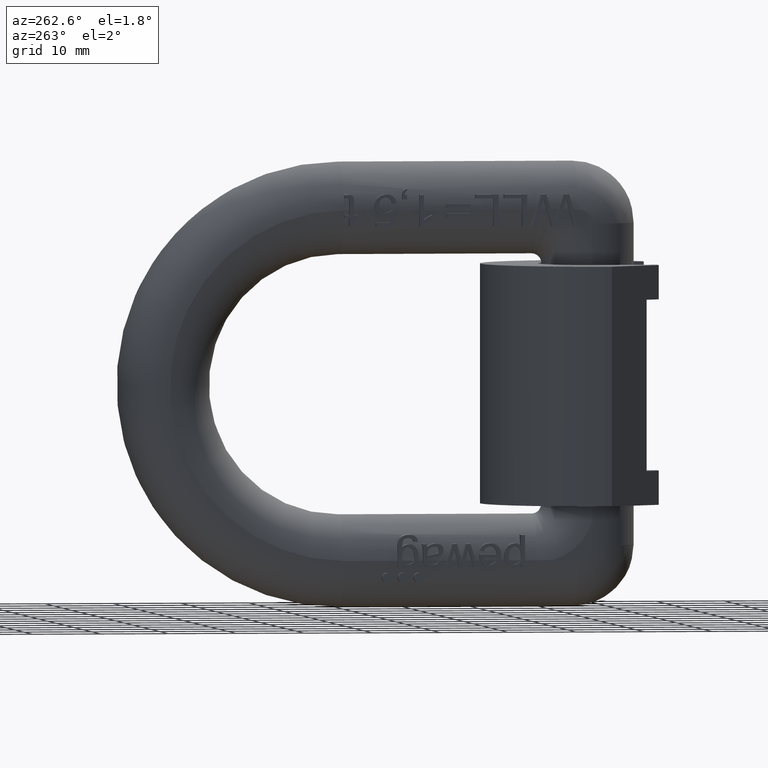
[diagram: clean part render]
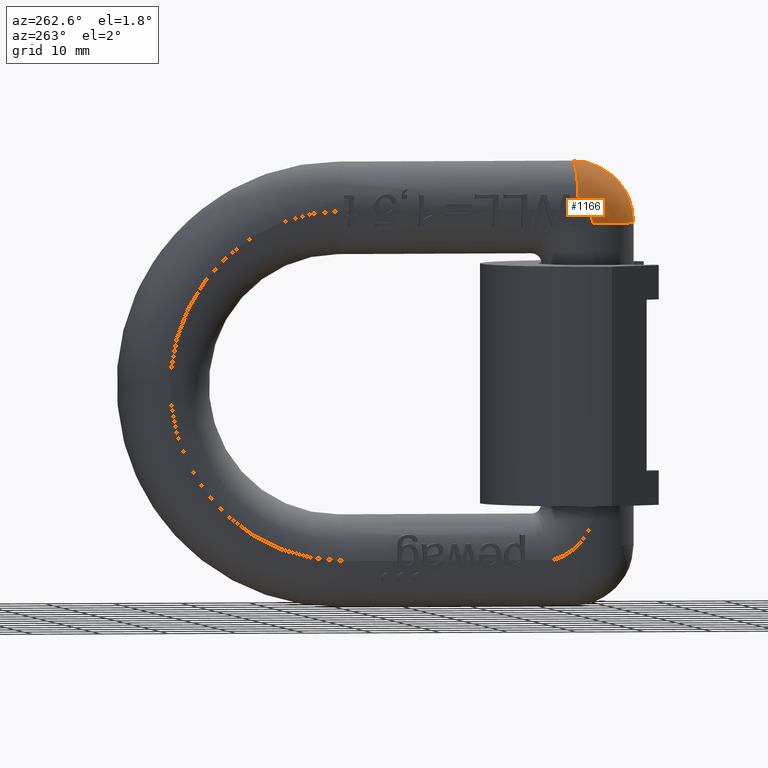
[diagram: same view with one face highlighted and labeled with its STEP entity id]
A machine part, auxiliary view. The second image highlights one B-rep face of the part: STEP entity #1166.
In plain terms, the highlighted face is a freeform B-spline surface patch.
Its self-contained STEP definition (entity closure, byte-faithful):
#237=(
BOUNDED_SURFACE()
B_SPLINE_SURFACE(3,3,((#12677,#12678,#12679,#12680),(#12681,#12682,#12683,
#12684),(#12685,#12686,#12687,#12688),(#12689,#12690,#12691,#12692)),
 .UNSPECIFIED.,.F.,.F.,.F.)
B_SPLINE_SURFACE_WITH_KNOTS((4,4),(4,4),(0.,1.),(0.,1.),.UNSPECIFIED.)
GEOMETRIC_REPRESENTATION_ITEM()
RATIONAL_B_SPLINE_SURFACE(((1.,0.804737854124365,0.804737854124365,1.),
(0.804737854124365,0.647603013860688,0.647603013860688,0.804737854124365),
(0.804737854124365,0.647603013860688,0.647603013860688,0.804737854124365),
(1.,0.804737854124365,0.804737854124365,1.)))
REPRESENTATION_ITEM('')
SURFACE()
);
#1166=ADVANCED_FACE('',(#1872),#237,.T.);
#1872=FACE_OUTER_BOUND('',#2331,.T.);
#2331=EDGE_LOOP('',(#3304,#3305,#3306,#3307));
#2781=CIRCLE('',#8946,9.);
#2789=CIRCLE('',#8964,2.1);
#2794=CIRCLE('',#8976,6.9);
#2822=CIRCLE('',#9036,6.9);
#3304=ORIENTED_EDGE('',*,*,#6661,.T.);
#3305=ORIENTED_EDGE('',*,*,#6454,.F.);
#3306=ORIENTED_EDGE('',*,*,#6508,.T.);
#3307=ORIENTED_EDGE('',*,*,#6483,.F.);
#5569=VERTEX_POINT('',#11289);
#5571=VERTEX_POINT('',#11295);
#5593=VERTEX_POINT('',#11402);
#5594=VERTEX_POINT('',#11404);
#6454=EDGE_CURVE('',#5571,#5569,#2781,.T.);
#6483=EDGE_CURVE('',#5593,#5594,#2789,.T.);
#6508=EDGE_CURVE('',#5571,#5594,#2794,.T.);
#6661=EDGE_CURVE('',#5593,#5569,#2822,.T.);
#8946=AXIS2_PLACEMENT_3D('',#11296,#9552,#9553);
#8964=AXIS2_PLACEMENT_3D('',#11403,#9599,#9600);
#8976=AXIS2_PLACEMENT_3D('',#11500,#9629,#9630);
#9036=AXIS2_PLACEMENT_3D('',#12622,#9788,#9789);
#9552=DIRECTION('',(1.,0.,0.));
#9553=DIRECTION('',(0.,0.,1.));
#9599=DIRECTION('',(-1.,0.,0.));
#9600=DIRECTION('',(0.,0.,1.));
#9629=DIRECTION('',(0.,-1.,-2.51409199416929E-16));
#9630=DIRECTION('',(0.,2.51409199416929E-16,-1.));
#9788=DIRECTION('',(0.,0.,1.));
#9789=DIRECTION('',(1.,0.,0.));
#11289=CARTESIAN_POINT('',(-0.0999999999999994,2.5,23.5));
#11295=CARTESIAN_POINT('',(-0.0999999999999994,11.5,32.5));
#11296=CARTESIAN_POINT('',(-0.0999999999999994,11.5,23.5));
#11402=CARTESIAN_POINT('',(-7.,9.4,23.5));
#11403=CARTESIAN_POINT('',(-7.,11.5,23.5));
#11404=CARTESIAN_POINT('',(-7.,11.5,25.6));
#11500=CARTESIAN_POINT('',(-0.0999999999999994,11.5,25.6));
#12622=CARTESIAN_POINT('',(-0.0999999999999994,9.4,23.5));
#12677=CARTESIAN_POINT('',(-7.,9.40000000000001,23.5));
#12678=CARTESIAN_POINT('',(-7.,9.40000000000001,24.7301515190165));
#12679=CARTESIAN_POINT('',(-7.,10.2698484809835,25.6));
#12680=CARTESIAN_POINT('',(-7.,11.5,25.6));
#12681=CARTESIAN_POINT('',(-7.,5.35807358037436,23.5));
#12682=CARTESIAN_POINT('',(-7.,5.35807358037436,27.0978571975191));
#12683=CARTESIAN_POINT('',(-7.,7.90214280248092,29.6419264196256));
#12684=CARTESIAN_POINT('',(-7.,11.5,29.6419264196256));
#12685=CARTESIAN_POINT('',(-4.14192641962565,2.5,23.5));
#12686=CARTESIAN_POINT('',(-4.14192641962565,2.5,28.7720779386421));
#12687=CARTESIAN_POINT('',(-4.14192641962565,6.22792206135786,32.5));
#12688=CARTESIAN_POINT('',(-4.14192641962565,11.5,32.5));
#12689=CARTESIAN_POINT('',(-0.0999999999999985,2.5,23.5));
#12690=CARTESIAN_POINT('',(-0.0999999999999985,2.5,28.7720779386421));
#12691=CARTESIAN_POINT('',(-0.0999999999999985,6.22792206135786,32.5));
#12692=CARTESIAN_POINT('',(-0.0999999999999985,11.5,32.5));